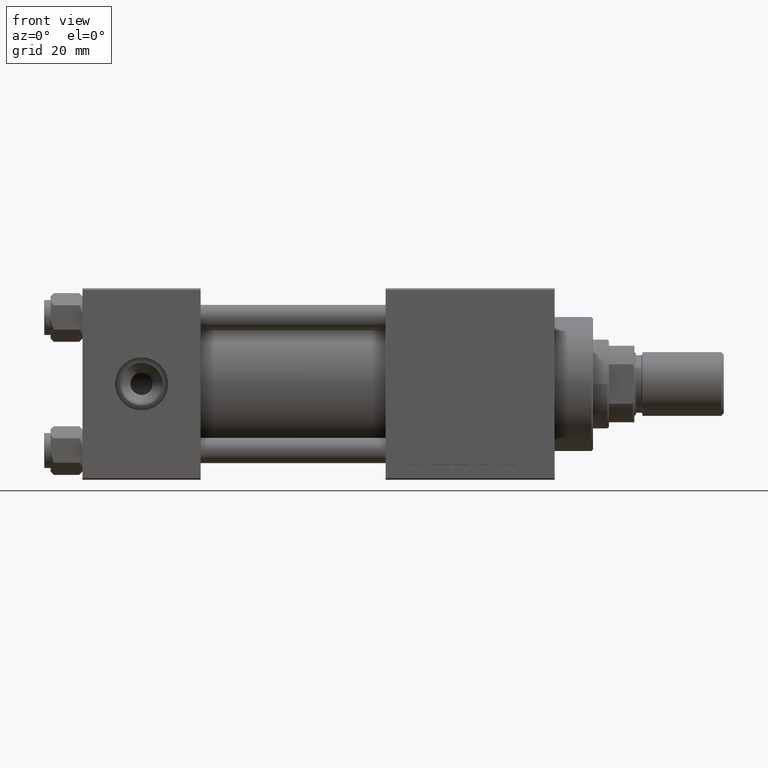
[diagram: clean part render]
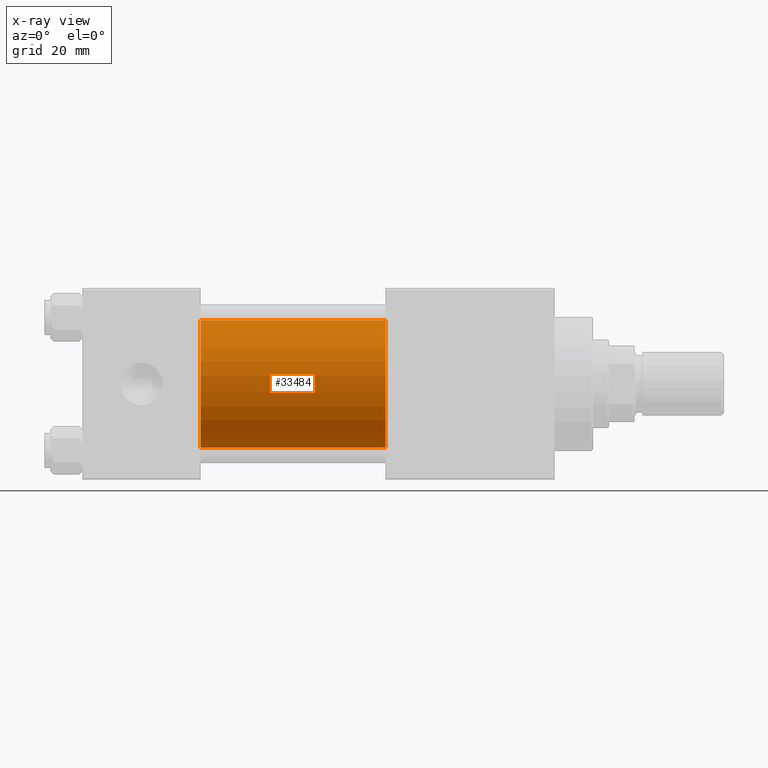
[diagram: x-ray — body ghosted, one internal face saturated and labeled with its STEP entity id]
A machine part, front view, then the same camera in x-ray: the body is ghosted and one INTERNAL B-rep face — a face not visible from any outside direction — is saturated and labeled: STEP entity #33484.
In plain terms, the highlighted cylindrical surface (partial cylindrical patch) has radius 20 mm, axis along (-1, -0, -0).
Its self-contained STEP definition (entity closure, byte-faithful):
#2627 = CARTESIAN_POINT ( 'NONE',  ( 95.00000000000000000, -2.602085213965210642E-15, 0.000000000000000000 ) ) ;
#3714 = ORIENTED_EDGE ( 'NONE', *, *, #22280, .F. ) ;
#4307 = VECTOR ( 'NONE', #50240, 1000.000000000000000 ) ;
#4328 = VERTEX_POINT ( 'NONE', #27420 ) ;
#5513 = CARTESIAN_POINT ( 'NONE',  ( 37.00000000000000000, -2.602085213965210642E-15, 0.000000000000000000 ) ) ;
#6222 = DIRECTION ( 'NONE',  ( 0.000000000000000000, 0.000000000000000000, -1.000000000000000000 ) ) ;
#6745 = VERTEX_POINT ( 'NONE', #12349 ) ;
#6945 = LINE ( 'NONE', #18259, #4307 ) ;
#8259 = EDGE_CURVE ( 'NONE', #6745, #13420, #6945, .T. ) ;
#11237 = EDGE_LOOP ( 'NONE', ( #45856, #40976, #30273, #3714 ) ) ;
#12288 = AXIS2_PLACEMENT_3D ( 'NONE', #2627, #18279, #6222 ) ;
#12349 = CARTESIAN_POINT ( 'NONE',  ( 95.00000000000000000, -1.527916156705046464E-16, -20.00000000000000000 ) ) ;
#13420 = VERTEX_POINT ( 'NONE', #13603 ) ;
#13472 = DIRECTION ( 'NONE',  ( 1.000000000000000000, 0.000000000000000000, 0.000000000000000000 ) ) ;
#13603 = CARTESIAN_POINT ( 'NONE',  ( 37.00000000000000000, -1.527916156705046464E-16, -20.00000000000000000 ) ) ;
#18259 = CARTESIAN_POINT ( 'NONE',  ( 95.00000000000000000, -1.527916156705046464E-16, -20.00000000000000000 ) ) ;
#18279 = DIRECTION ( 'NONE',  ( 1.000000000000000000, 0.000000000000000000, 0.000000000000000000 ) ) ;
#19974 = CIRCLE ( 'NONE', #30615, 20.00000000000000000 ) ;
#21331 = DIRECTION ( 'NONE',  ( -1.000000000000000000, -0.000000000000000000, -0.000000000000000000 ) ) ;
#21419 = DIRECTION ( 'NONE',  ( 0.000000000000000000, 0.000000000000000000, -1.000000000000000000 ) ) ;
#21803 = EDGE_CURVE ( 'NONE', #24042, #6745, #49907, .T. ) ;
#22280 = EDGE_CURVE ( 'NONE', #24042, #4328, #48114, .T. ) ;
#22363 = AXIS2_PLACEMENT_3D ( 'NONE', #41552, #21331, #37707 ) ;
#24042 = VERTEX_POINT ( 'NONE', #44828 ) ;
#27420 = CARTESIAN_POINT ( 'NONE',  ( 37.00000000000000000, -2.602085213965210642E-15, 20.00000000000000000 ) ) ;
#29263 = FACE_OUTER_BOUND ( 'NONE', #11237, .T. ) ;
#30273 = ORIENTED_EDGE ( 'NONE', *, *, #46726, .F. ) ;
#30615 = AXIS2_PLACEMENT_3D ( 'NONE', #5513, #13472, #21419 ) ;
#32862 = CYLINDRICAL_SURFACE ( 'NONE', #22363, 20.00000000000000000 ) ;
#33484 = ADVANCED_FACE ( 'NONE', ( #29263 ), #32862, .F. ) ;
#37707 = DIRECTION ( 'NONE',  ( 0.000000000000000000, 0.000000000000000000, 1.000000000000000000 ) ) ;
#40689 = DIRECTION ( 'NONE',  ( -1.000000000000000000, -0.000000000000000000, -0.000000000000000000 ) ) ;
#40976 = ORIENTED_EDGE ( 'NONE', *, *, #8259, .T. ) ;
#41552 = CARTESIAN_POINT ( 'NONE',  ( 95.00000000000000000, -2.602085213965210642E-15, 0.000000000000000000 ) ) ;
#44828 = CARTESIAN_POINT ( 'NONE',  ( 95.00000000000000000, -2.602085213965210642E-15, 20.00000000000000000 ) ) ;
#45302 = CARTESIAN_POINT ( 'NONE',  ( 95.00000000000000000, -2.602085213965210642E-15, 20.00000000000000000 ) ) ;
#45856 = ORIENTED_EDGE ( 'NONE', *, *, #21803, .T. ) ;
#46677 = VECTOR ( 'NONE', #40689, 1000.000000000000000 ) ;
#46726 = EDGE_CURVE ( 'NONE', #4328, #13420, #19974, .T. ) ;
#48114 = LINE ( 'NONE', #45302, #46677 ) ;
#49907 = CIRCLE ( 'NONE', #12288, 20.00000000000000000 ) ;
#50240 = DIRECTION ( 'NONE',  ( -1.000000000000000000, -0.000000000000000000, -0.000000000000000000 ) ) ;